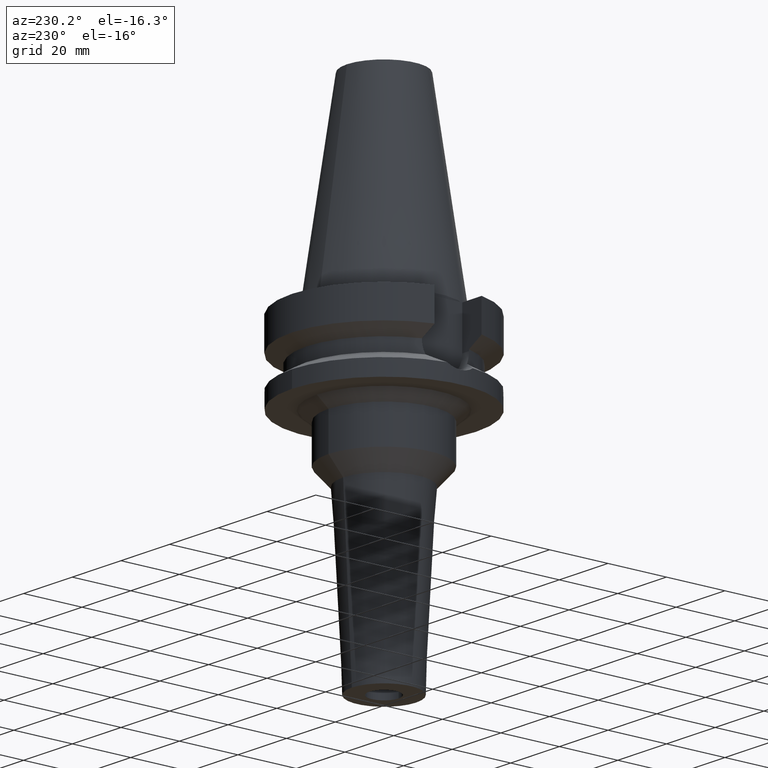
[diagram: clean part render]
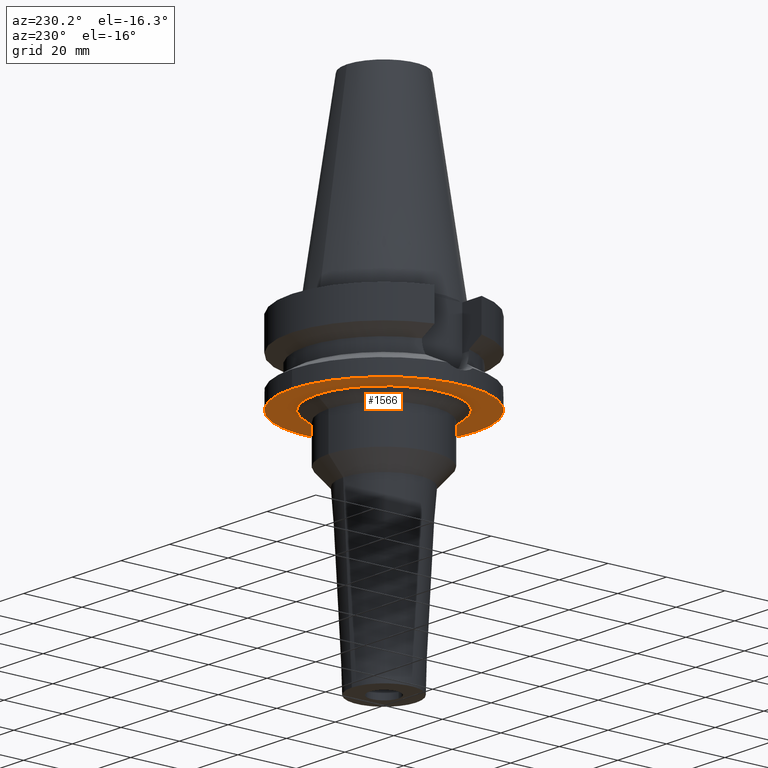
[diagram: same view with one face highlighted and labeled with its STEP entity id]
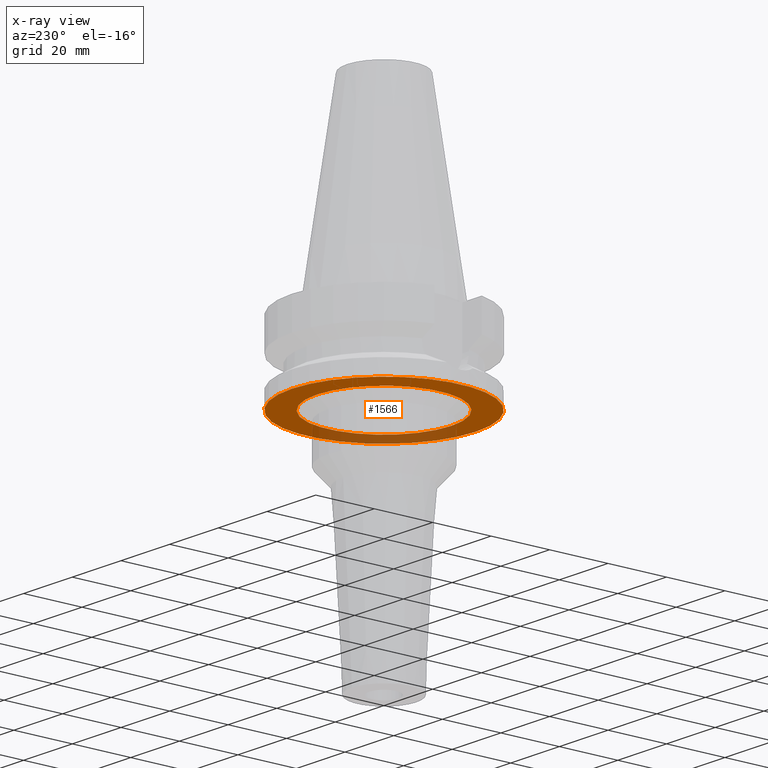
[diagram: x-ray of the same camera — body ghosted, the highlighted face saturated]
A machine part, auxiliary view. The second image highlights one B-rep face of the part: STEP entity #1566.
The next image is the same camera in x-ray: the body ghosted, the highlighted face saturated — about 24% of this face is hidden behind the body in this view.
In plain terms, the highlighted planar face has unit normal (0, 0, -1).
Its self-contained STEP definition (entity closure, byte-faithful):
#629=CARTESIAN_POINT('',(0.E0,2.129905713077E-14,-2.7E1));
#630=DIRECTION('',(0.E0,0.E0,1.E0));
#631=DIRECTION('',(0.E0,-1.E0,0.E0));
#632=AXIS2_PLACEMENT_3D('',#629,#630,#631);
#637=CARTESIAN_POINT('',(0.E0,2.129905713077E-14,-2.7E1));
#638=DIRECTION('',(0.E0,0.E0,1.E0));
#639=DIRECTION('',(0.E0,1.E0,0.E0));
#640=AXIS2_PLACEMENT_3D('',#637,#638,#639);
#645=CARTESIAN_POINT('',(0.E0,0.E0,-2.7E1));
#646=DIRECTION('',(0.E0,0.E0,-1.E0));
#647=DIRECTION('',(0.E0,-1.E0,0.E0));
#648=AXIS2_PLACEMENT_3D('',#645,#646,#647);
#653=CARTESIAN_POINT('',(0.E0,0.E0,-2.7E1));
#654=DIRECTION('',(0.E0,0.E0,-1.E0));
#655=DIRECTION('',(0.E0,1.E0,0.E0));
#656=AXIS2_PLACEMENT_3D('',#653,#654,#655);
#1035=CARTESIAN_POINT('',(0.E0,2.300037484864E1,-2.7E1));
#1036=VERTEX_POINT('',#1035);
#1037=CARTESIAN_POINT('',(0.E0,-2.300037484864E1,-2.7E1));
#1038=VERTEX_POINT('',#1037);
#1039=CARTESIAN_POINT('',(0.E0,-3.15E1,-2.7E1));
#1040=CARTESIAN_POINT('',(0.E0,3.15E1,-2.7E1));
#1041=VERTEX_POINT('',#1039);
#1042=VERTEX_POINT('',#1040);
#1551=CARTESIAN_POINT('',(0.E0,0.E0,-2.7E1));
#1552=DIRECTION('',(0.E0,0.E0,-1.E0));
#1553=DIRECTION('',(0.E0,-1.E0,0.E0));
#1554=AXIS2_PLACEMENT_3D('',#1551,#1552,#1553);
#1555=PLANE('',#1554);
#1556=ORIENTED_EDGE('',*,*,#1513,.T.);
#1557=ORIENTED_EDGE('',*,*,#1544,.T.);
#1558=EDGE_LOOP('',(#1556,#1557));
#1559=FACE_OUTER_BOUND('',#1558,.F.);
#1561=ORIENTED_EDGE('',*,*,#1560,.T.);
#1563=ORIENTED_EDGE('',*,*,#1562,.T.);
#1564=EDGE_LOOP('',(#1561,#1563));
#1565=FACE_BOUND('',#1564,.F.);
#633=CIRCLE('',#632,3.15E1);
#641=CIRCLE('',#640,3.15E1);
#649=CIRCLE('',#648,2.300037484864E1);
#657=CIRCLE('',#656,2.300037484864E1);
#1513=EDGE_CURVE('',#1041,#1042,#633,.T.);
#1544=EDGE_CURVE('',#1042,#1041,#641,.T.);
#1560=EDGE_CURVE('',#1038,#1036,#649,.T.);
#1562=EDGE_CURVE('',#1036,#1038,#657,.T.);
#1566=ADVANCED_FACE('',(#1559,#1565),#1555,.T.);